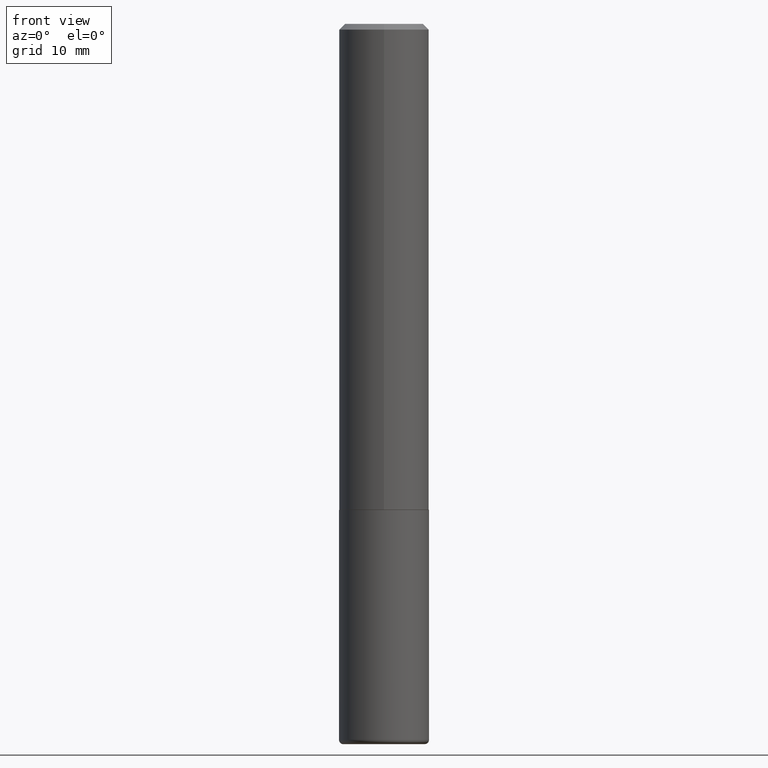
[diagram: clean part render]
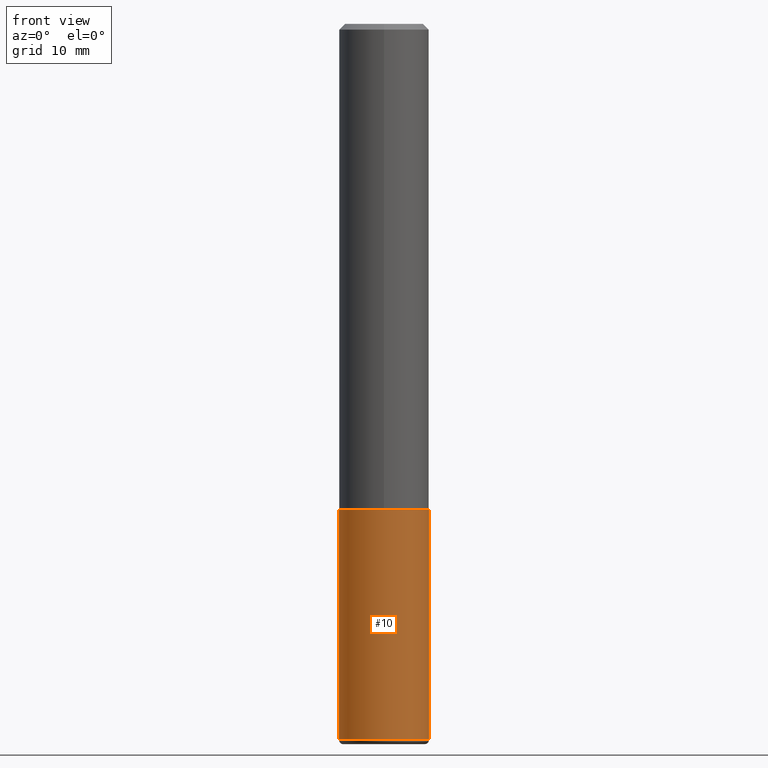
[diagram: same view with one face highlighted and labeled with its STEP entity id]
A machine part, front view. The second image highlights one B-rep face of the part: STEP entity #10.
In plain terms, the highlighted cylindrical surface (partial cylindrical patch) has radius 3.9688 mm, axis along (-0, 0, 1).
Its self-contained STEP definition (entity closure, byte-faithful):
#2 = CARTESIAN_POINT ( 'NONE',  ( 6.076989983370064174E-29, -8.676331127025216680E-15, -2.484999999999999876 ) ) ;
#4 = DIRECTION ( 'NONE',  ( -2.445468806185136877E-29, 3.491481338843145188E-15, 1.000000000000000000 ) ) ;
#10 = ADVANCED_FACE ( 'NONE', ( #90 ), #74, .T. ) ;
#16 = EDGE_CURVE ( 'NONE', #353, #219, #260, .T. ) ;
#32 = EDGE_CURVE ( 'NONE', #313, #323, #39, .T. ) ;
#39 = LINE ( 'NONE', #239, #181 ) ;
#48 = CARTESIAN_POINT ( 'NONE',  ( -0.1562500000000000000, -6.173007048201645860E-15, -1.687000000000000277 ) ) ;
#74 = CYLINDRICAL_SURFACE ( 'NONE', #234, 0.1562500000000000000 ) ;
#75 = CARTESIAN_POINT ( 'NONE',  ( 0.000000000000000000, 0.000000000000000000, 0.000000000000000000 ) ) ;
#81 = CARTESIAN_POINT ( 'NONE',  ( 4.125505876034326327E-29, -5.890129018628388122E-15, -1.687000000000000277 ) ) ;
#82 = DIRECTION ( 'NONE',  ( -2.445468806185136597E-29, 3.491481338843145583E-15, 1.000000000000000000 ) ) ;
#83 = CARTESIAN_POINT ( 'NONE',  ( 0.1562500000000002220, -9.767419045413696643E-15, -2.484999999999999876 ) ) ;
#90 = FACE_OUTER_BOUND ( 'NONE', #301, .T. ) ;
#103 = CIRCLE ( 'NONE', #370, 0.1562500000000000000 ) ;
#132 = EDGE_CURVE ( 'NONE', #353, #313, #387, .T. ) ;
#137 = ORIENTED_EDGE ( 'NONE', *, *, #193, .F. ) ;
#139 = DIRECTION ( 'NONE',  ( 1.000000000000000000, -6.982962677686269077E-15, 0.000000000000000000 ) ) ;
#172 = CARTESIAN_POINT ( 'NONE',  ( -0.1562500000000000000, 1.110223024625156540E-15, -7.685836078523291160E-30 ) ) ;
#181 = VECTOR ( 'NONE', #270, 39.37007874015748143 ) ;
#185 = ORIENTED_EDGE ( 'NONE', *, *, #16, .F. ) ;
#193 = EDGE_CURVE ( 'NONE', #219, #323, #103, .T. ) ;
#219 = VERTEX_POINT ( 'NONE', #48 ) ;
#234 = AXIS2_PLACEMENT_3D ( 'NONE', #75, #397, #288 ) ;
#239 = CARTESIAN_POINT ( 'NONE',  ( 0.1562500000000000000, -1.091087918388479174E-15, 7.619026212181150377E-30 ) ) ;
#260 = LINE ( 'NONE', #172, #318 ) ;
#270 = DIRECTION ( 'NONE',  ( -2.445468806185136877E-29, 3.491481338843145188E-15, 1.000000000000000000 ) ) ;
#288 = DIRECTION ( 'NONE',  ( 1.000000000000000000, -6.982962677686266711E-15, 4.876176775795936353E-29 ) ) ;
#301 = EDGE_LOOP ( 'NONE', ( #185, #415, #381, #137 ) ) ;
#306 = CARTESIAN_POINT ( 'NONE',  ( 0.1562500000000000000, -6.981216937016868084E-15, -1.687000000000000277 ) ) ;
#313 = VERTEX_POINT ( 'NONE', #83 ) ;
#318 = VECTOR ( 'NONE', #4, 39.37007874015748143 ) ;
#323 = VERTEX_POINT ( 'NONE', #306 ) ;
#334 = CARTESIAN_POINT ( 'NONE',  ( -0.1562500000000002220, -7.566108102400058562E-15, -2.484999999999999876 ) ) ;
#337 = DIRECTION ( 'NONE',  ( 1.000000000000000000, -6.982962677686269077E-15, 0.000000000000000000 ) ) ;
#353 = VERTEX_POINT ( 'NONE', #334 ) ;
#370 = AXIS2_PLACEMENT_3D ( 'NONE', #81, #82, #337 ) ;
#381 = ORIENTED_EDGE ( 'NONE', *, *, #32, .T. ) ;
#386 = DIRECTION ( 'NONE',  ( -2.445468806185136597E-29, 3.491481338843145583E-15, 1.000000000000000000 ) ) ;
#387 = CIRCLE ( 'NONE', #406, 0.1562500000000000000 ) ;
#397 = DIRECTION ( 'NONE',  ( -2.445468806185136597E-29, 3.491481338843145583E-15, 1.000000000000000000 ) ) ;
#406 = AXIS2_PLACEMENT_3D ( 'NONE', #2, #386, #139 ) ;
#415 = ORIENTED_EDGE ( 'NONE', *, *, #132, .T. ) ;